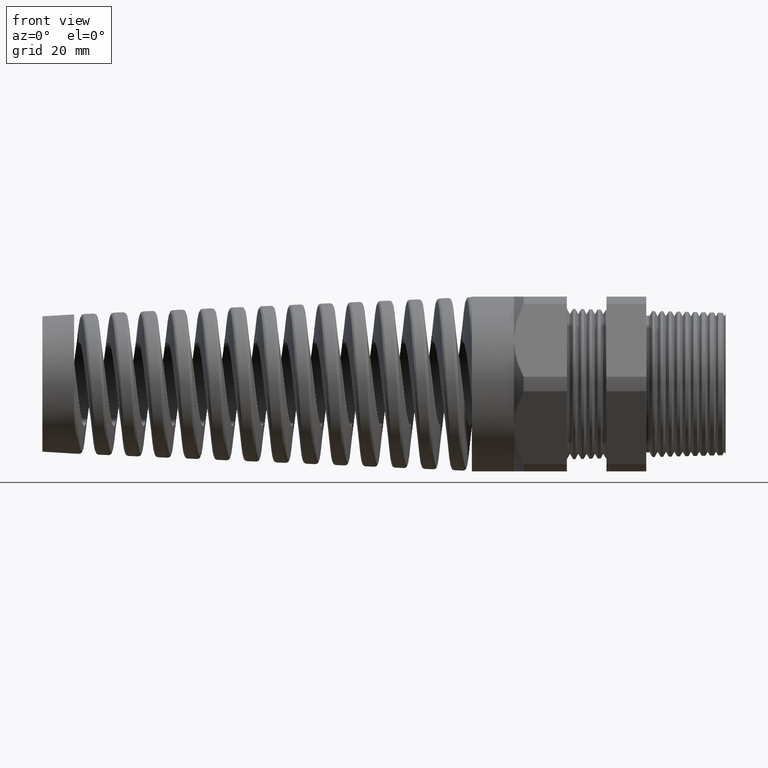
[diagram: clean part render]
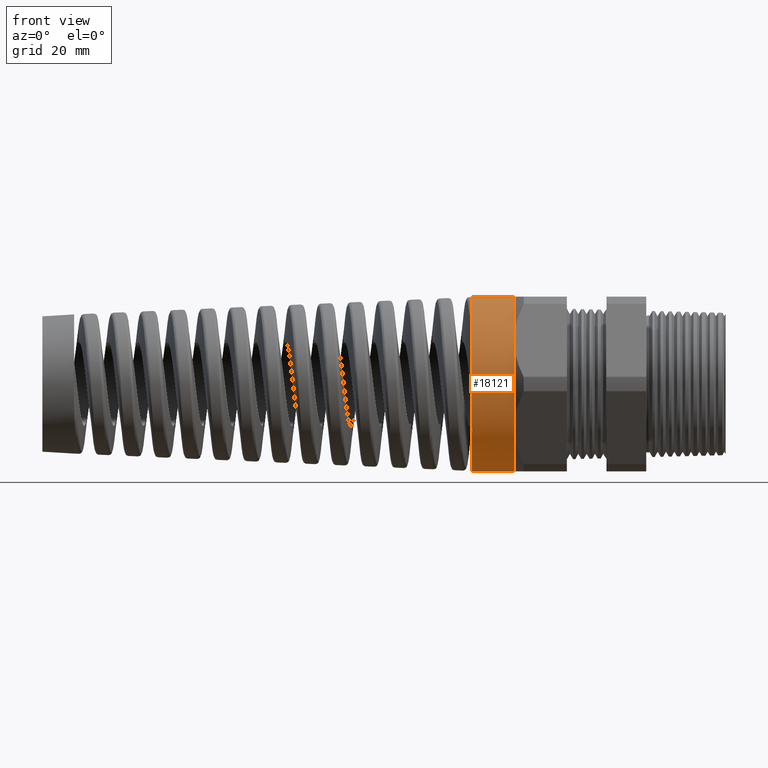
[diagram: same view with one face highlighted and labeled with its STEP entity id]
A machine part, front view. The second image highlights one B-rep face of the part: STEP entity #18121.
In plain terms, the highlighted cylindrical surface (partial cylindrical patch) has radius 16.51 mm, axis along (1, 0, 0).
Its self-contained STEP definition (entity closure, byte-faithful):
#6974 = CARTESIAN_POINT ( 'NONE',  ( -1.293779527559055300, 0.0000000000000000000, 0.6499999999999999100 ) ) ;
#6975 = DIRECTION ( 'NONE',  ( 1.000000000000000000, 0.0000000000000000000, 0.0000000000000000000 ) ) ;
#6976 = VECTOR ( 'NONE', #6975, 39.37007874015748100 ) ;
#6977 = CARTESIAN_POINT ( 'NONE',  ( 0.0000000000000000000, 7.960204194457796700E-017, 0.6500000000000000200 ) ) ;
#6978 = LINE ( 'NONE', #6977, #6976 ) ;
#6979 = CARTESIAN_POINT ( 'NONE',  ( -1.606986927084337300, 0.0000000000000000000, -0.6499999999999999100 ) ) ;
#6980 = CARTESIAN_POINT ( 'NONE',  ( -1.606986927084337300, 7.960204194457796700E-017, 0.6499999999999999100 ) ) ;
#7087 = CARTESIAN_POINT ( 'NONE',  ( 0.0000000000000000000, 0.0000000000000000000, -0.6500000000000000200 ) ) ;
#7088 = LINE ( 'NONE', #7087, #7141 ) ;
#7137 = CARTESIAN_POINT ( 'NONE',  ( -1.293779527559055300, 0.0000000000000000000, -0.6500000000000001300 ) ) ;
#7140 = DIRECTION ( 'NONE',  ( 1.000000000000000000, 0.0000000000000000000, 0.0000000000000000000 ) ) ;
#7141 = VECTOR ( 'NONE', #7140, 39.37007874015748100 ) ;
#7650 = CIRCLE ( 'NONE', #7680, 0.6500000000000000200 ) ;
#7672 = DIRECTION ( 'NONE',  ( 0.0000000000000000000, 0.0000000000000000000, 1.000000000000000000 ) ) ;
#7673 = DIRECTION ( 'NONE',  ( -1.000000000000000000, 0.0000000000000000000, 0.0000000000000000000 ) ) ;
#7674 = AXIS2_PLACEMENT_3D ( 'NONE', #7681, #7673, #7672 ) ;
#7675 = CIRCLE ( 'NONE', #7674, 0.6499999999999999100 ) ;
#7676 = FACE_OUTER_BOUND ( 'NONE', #18120, .T. ) ;
#7677 = DIRECTION ( 'NONE',  ( 0.0000000000000000000, 0.0000000000000000000, -1.000000000000000000 ) ) ;
#7678 = DIRECTION ( 'NONE',  ( 1.000000000000000000, 0.0000000000000000000, 0.0000000000000000000 ) ) ;
#7679 = CARTESIAN_POINT ( 'NONE',  ( -1.293779527559055300, 0.0000000000000000000, 0.0000000000000000000 ) ) ;
#7680 = AXIS2_PLACEMENT_3D ( 'NONE', #7679, #7678, #7677 ) ;
#7681 = CARTESIAN_POINT ( 'NONE',  ( -1.606986927084337300, 0.0000000000000000000, 0.0000000000000000000 ) ) ;
#7724 = DIRECTION ( 'NONE',  ( 0.0000000000000000000, 0.0000000000000000000, -1.000000000000000000 ) ) ;
#7725 = DIRECTION ( 'NONE',  ( 1.000000000000000000, 0.0000000000000000000, 0.0000000000000000000 ) ) ;
#7726 = AXIS2_PLACEMENT_3D ( 'NONE', #7738, #7725, #7724 ) ;
#7727 = CIRCLE ( 'NONE', #7726, 0.6500000000000000200 ) ;
#7738 = CARTESIAN_POINT ( 'NONE',  ( -1.293779527559055300, 0.0000000000000000000, 0.0000000000000000000 ) ) ;
#7740 = DIRECTION ( 'NONE',  ( 0.0000000000000000000, 0.0000000000000000000, -1.000000000000000000 ) ) ;
#7741 = DIRECTION ( 'NONE',  ( 1.000000000000000000, 0.0000000000000000000, 0.0000000000000000000 ) ) ;
#7742 = AXIS2_PLACEMENT_3D ( 'NONE', #7744, #7741, #7740 ) ;
#7743 = CYLINDRICAL_SURFACE ( 'NONE', #7742, 0.6500000000000000200 ) ;
#7744 = CARTESIAN_POINT ( 'NONE',  ( 0.0000000000000000000, 0.0000000000000000000, 0.0000000000000000000 ) ) ;
#8338 = DIRECTION ( 'NONE',  ( 0.0000000000000000000, 0.0000000000000000000, -1.000000000000000000 ) ) ;
#8339 = DIRECTION ( 'NONE',  ( 1.000000000000000000, 0.0000000000000000000, 0.0000000000000000000 ) ) ;
#8340 = AXIS2_PLACEMENT_3D ( 'NONE', #8346, #8339, #8338 ) ;
#8341 = CIRCLE ( 'NONE', #8340, 0.6500000000000000200 ) ;
#8346 = CARTESIAN_POINT ( 'NONE',  ( -1.293779527559055300, 0.0000000000000000000, 0.0000000000000000000 ) ) ;
#9948 = VERTEX_POINT ( 'NONE', #17141 ) ;
#17141 = CARTESIAN_POINT ( 'NONE',  ( -1.293779527559055300, -0.5629165124598851700, -0.3250000000000002300 ) ) ;
#17844 = VERTEX_POINT ( 'NONE', #6980 ) ;
#17845 = VERTEX_POINT ( 'NONE', #6979 ) ;
#17847 = EDGE_CURVE ( 'NONE', #17844, #17848, #6978, .T. ) ;
#17848 = VERTEX_POINT ( 'NONE', #6974 ) ;
#17889 = EDGE_CURVE ( 'NONE', #17845, #17892, #7088, .T. ) ;
#17892 = VERTEX_POINT ( 'NONE', #7137 ) ;
#18059 = ORIENTED_EDGE ( 'NONE', *, *, #17889, .T. ) ;
#18082 = ORIENTED_EDGE ( 'NONE', *, *, #18106, .F. ) ;
#18088 = ORIENTED_EDGE ( 'NONE', *, *, #17847, .F. ) ;
#18106 = EDGE_CURVE ( 'NONE', #9948, #17892, #7650, .T. ) ;
#18118 = EDGE_CURVE ( 'NONE', #17845, #17844, #7675, .T. ) ;
#18119 = ORIENTED_EDGE ( 'NONE', *, *, #18118, .F. ) ;
#18120 = EDGE_LOOP ( 'NONE', ( #18088, #18119, #18059, #18082, #18124, #19364 ) ) ;
#18121 = ADVANCED_FACE ( 'NONE', ( #7676 ), #7743, .T. ) ;
#18124 = ORIENTED_EDGE ( 'NONE', *, *, #18126, .F. ) ;
#18126 = EDGE_CURVE ( 'NONE', #21472, #9948, #7727, .T. ) ;
#19001 = CARTESIAN_POINT ( 'NONE',  ( -1.293779527559055300, -0.5629165124598852800, 0.3249999999999997900 ) ) ;
#19363 = EDGE_CURVE ( 'NONE', #17848, #21472, #8341, .T. ) ;
#19364 = ORIENTED_EDGE ( 'NONE', *, *, #19363, .F. ) ;
#21472 = VERTEX_POINT ( 'NONE', #19001 ) ;